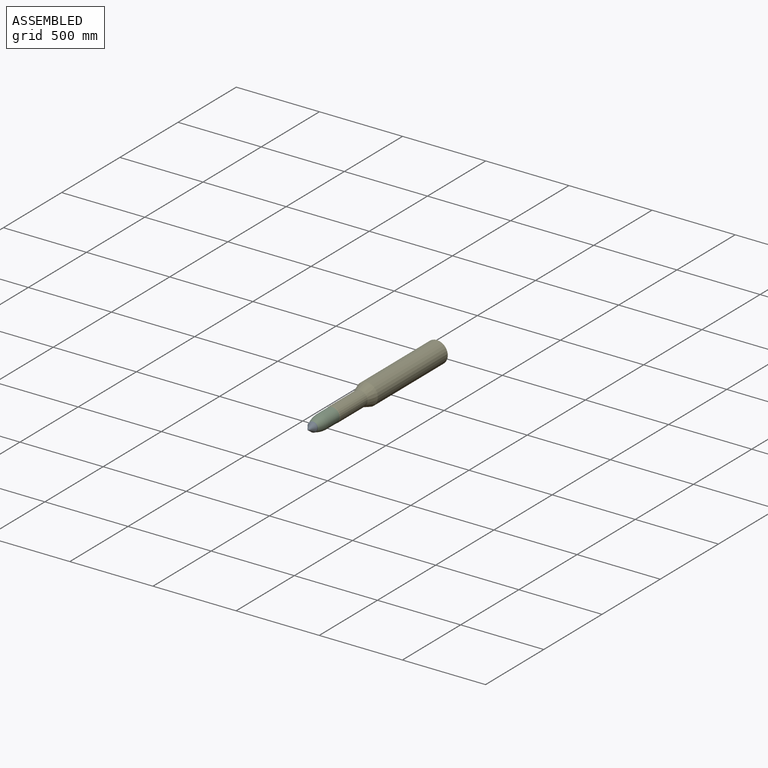
[diagram: assembled view]
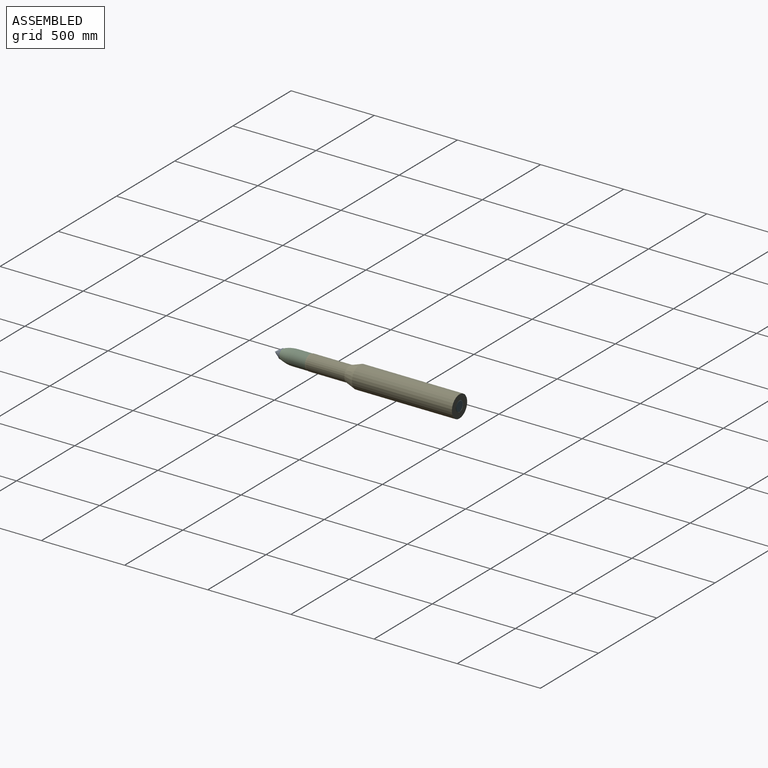
[diagram: assembled view, second angle]
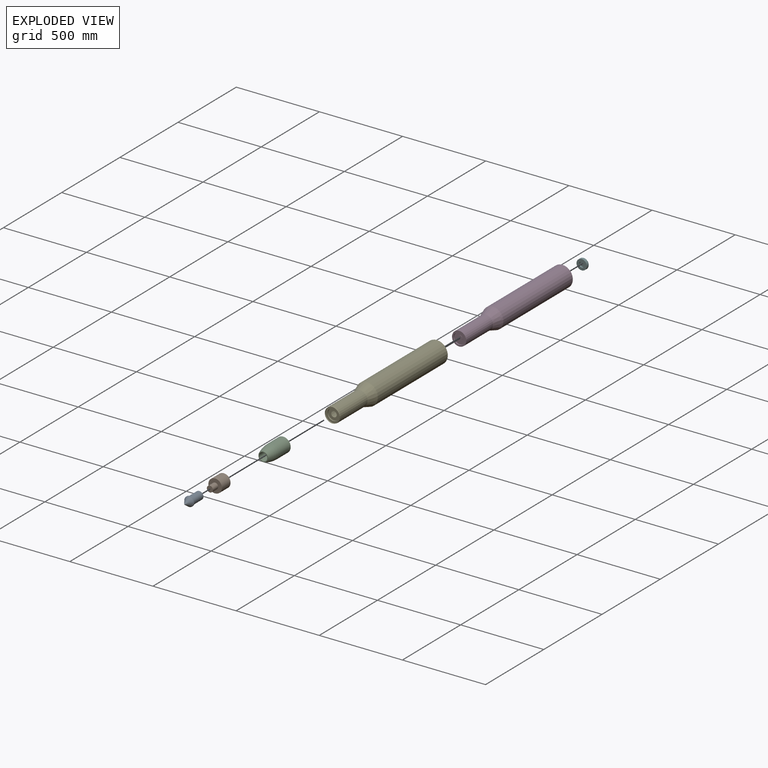
[diagram: exploded view]
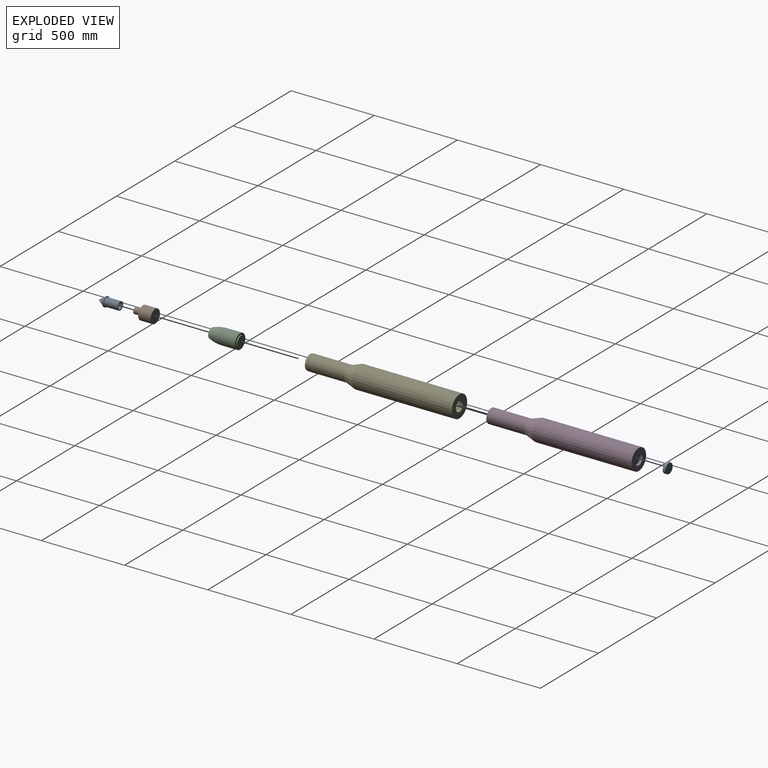
[diagram: exploded view, second angle]
ASSEMBLY  parts=6 mates=5
PART A: 7 faces, bbox 57.4x130x57.4 mm
  f0: plane 57.43x57.43mm, normal (0,1,0), area 725.9mm2, adj f1,f6
  f1: cylinder r=28.72mm len=57.43mm, axis (0,1,0), area 1082.5mm2, adj f0,f2
  f2: cone r=28.72mm half-angle=34.6deg, axis (0,1,0), area 4565.5mm2, adj f1
  f3: plane 36.72x36.72mm, normal (0,1,0), area 1059.2mm2, adj f4
  f4: cylinder r=18.36mm len=45mm, axis (0,1,0), area 5191.6mm2, adj f3,f5
  f5: plane 48.72x48.72mm, normal (0,1,0), area 805.3mm2, adj f4,f6
  f6: cylinder r=24.36mm len=82.31mm, axis (0,1,0), area 12599.2mm2, adj f0,f5
PART B: 5 faces, bbox 81.2x119.6x81.2 mm
  f0: plane 81.19x81.19mm, normal (0,-1,0), area 4117.7mm2, adj f1,f4
  f1: cylinder r=18.36mm len=45mm, axis (0,1,0), area 5191.6mm2, adj f0,f2
  f2: plane 36.72x36.72mm, normal (0,-1,0), area 1059.2mm2, adj f1
  f3: plane 81.19x81.19mm, normal (0,1,0), area 5176.8mm2, adj f4
  f4: cylinder r=40.59mm len=81.19mm, axis (0,1,0), area 19028.8mm2, adj f0,f3
PART C: 10 faces, bbox 89.2x179.3x89.2 mm
  f0: plane 81.19x81.19mm, normal (0,1,0), area 3312.3mm2, adj f1,f9
  f1: cylinder r=40.59mm len=81.19mm, axis (0,1,0), area 19028.8mm2, adj f0,f2
  f2: cone r=0mm half-angle=89.4deg, axis (0,-1,0), area 5177.1mm2, adj f1
  f3: plane 67.34x67.34mm, normal (0,1,0), area 3561.5mm2, adj f4
  f4: cylinder r=33.67mm len=67.34mm, axis (0,1,0), area 1480.9mm2, adj f3,f5
  f5: plane 89.19x89.19mm, normal (0,1,0), area 2685.8mm2, adj f4,f6
  f6: cylinder r=44.59mm len=90mm, axis (0,1,0), area 25217.1mm2, adj f5,f7
  f7: revolved ~89.19x89.19mm, area 20933.1mm2, adj f6,f8
  f8: plane 57.43x57.43mm, normal (0,-1,0), area 725.9mm2, adj f7,f9
  f9: cylinder r=24.36mm len=82.31mm, axis (0,1,0), area 12599.2mm2, adj f0,f8
PART D: 11 faces, bbox 125.8x887x125.8 mm
  f0: plane 33.67x33.67mm, normal (0,-1,0), area 890.4mm2, adj f10
  f1: plane 65.79x65.79mm, normal (0,1,0), area 3399mm2, adj f2
  f2: cylinder r=32.89mm len=65.79mm, axis (0,-1,0), area 3306.8mm2, adj f1,f3
  f3: plane 125.79x125.79mm, normal (0,1,0), area 9027.6mm2, adj f2,f4
  f4: cylinder r=62.89mm len=597mm, axis (0,-1,0), area 235915.2mm2, adj f3,f5
  f5: cone r=42.89mm half-angle=18.4deg, axis (0,1,0), area 21018.8mm2, adj f4,f6
  f6: cylinder r=42.89mm len=230mm, axis (0,-1,0), area 61985.9mm2, adj f5,f7
  f7: plane 85.79x85.79mm, normal (0,-1,0), area 2209.7mm2, adj f6,f8
  f8: cylinder r=33.71mm len=67.42mm, axis (0,-1,0), area 1482.7mm2, adj f7,f9
  f9: plane 67.42x67.42mm, normal (0,-1,0), area 2679.8mm2, adj f8,f10
  f10: cylinder r=16.83mm len=33.67mm, axis (0,-1,0), area 105.8mm2, adj f0,f9
PART E: 20 faces, bbox 131.8x898.5x131.8 mm
  f0: plane 67.34x67.34mm, normal (0,-1,0), area 2671.1mm2, adj f1,f19
  f1: cylinder r=16.83mm len=33.67mm, axis (0,-1,0), area 105.8mm2, adj f0,f2
  f2: plane 67.42x67.42mm, normal (0,1,0), area 2679.8mm2, adj f1,f3
  f3: cylinder r=33.71mm len=67.42mm, axis (0,-1,0), area 1482.7mm2, adj f2,f4
  f4: plane 85.79x85.79mm, normal (0,1,0), area 2209.7mm2, adj f3,f5
  f5: cylinder r=42.89mm len=230mm, axis (0,-1,0), area 61985.9mm2, adj f4,f6
  f6: cone r=42.89mm half-angle=18.4deg, axis (0,1,0), area 21018.8mm2, adj f5,f7
  f7: cylinder r=62.89mm len=597mm, axis (0,-1,0), area 235915.2mm2, adj f6,f8
  f8: plane 125.79x125.79mm, normal (0,-1,0), area 9027.6mm2, adj f7,f9
  f9: cylinder r=32.89mm len=65.79mm, axis (0,-1,0), area 3100.1mm2, adj f8,f10
  f10: plane 65.79x65.79mm, normal (0,-1,0), area 400.8mm2, adj f9,f11
  f11: cylinder r=30.89mm len=61.79mm, axis (0,-1,0), area 3493.9mm2, adj f10,f12
  f12: plane 131.79x131.79mm, normal (0,1,0), area 10642.2mm2, adj f11,f13
  f13: cylinder r=65.89mm len=600.6mm, axis (0,-1,0), area 248658.8mm2, adj f12,f14
  f14: cone r=45.89mm half-angle=18.4deg, axis (0,1,0), area 22210.9mm2, adj f13,f15
  f15: cylinder r=45.89mm len=230.4mm, axis (0,-1,0), area 66436.7mm2, adj f14,f16
  f16: cone r=44.89mm half-angle=7.6deg, axis (0,1,0), area 2158mm2, adj f15,f17
  f17: cylinder r=44.89mm len=89.79mm, axis (0,-1,0), area 2115.5mm2, adj f16,f18
  f18: plane 89.79x89.79mm, normal (0,-1,0), area 2770mm2, adj f17,f19
  f19: cylinder r=33.67mm len=67.34mm, axis (0,-1,0), area 1480.9mm2, adj f0,f18
PART F: 6 faces, bbox 66.9x18x66.9 mm
  f0: cylinder r=15.45mm len=30.89mm, axis (0,-1,0), area 873.5mm2, adj f1,f4
  f1: plane 30.89x30.89mm, normal (0,-1,0), area 749.6mm2, adj f0
  f2: plane 57.44x57.44mm, normal (0,1,0), area 2591.3mm2, adj f5
  f3: cylinder r=30.89mm len=61.79mm, axis (0,-1,0), area 3072.2mm2, adj f4,f5
  f4: plane 61.79x61.79mm, normal (0,-1,0), area 2248.7mm2, adj f0,f3
  f5: torus R=28.72mm, axis (0,-1,0), area 645.6mm2, adj f2,f3
PLACE A t=(182.82,-495.88,-45.22)mm
PLACE B t=(182.82,-495.88,-45.22)mm
PLACE C t=(182.82,-496.08,-45.22)mm
PLACE D t=(182.82,-579.58,-45.22)mm
PLACE E t=(182.82,-579.58,-45.22)mm
PLACE F t=(182.82,-579.58,-45.22)mm
MATE fastened E.f1 <-> D.f2  axis (0,1,0) through (182.82,-491.58,-45.22)mm
MATE fastened C.f1 <-> E.f1  axis (0,1,0) through (182.82,-492.58,-45.22)mm
MATE fastened C.f1 <-> B.f1  axis (0,-1,0) through (182.82,-514.79,-45.22)mm
MATE fastened F.f0 <-> E.f1  axis (0,-1,0) through (182.82,373.42,-45.22)mm
MATE fastened A.f1 <-> B.f1  axis (0,1,0) through (182.82,-634.39,-45.22)mm
